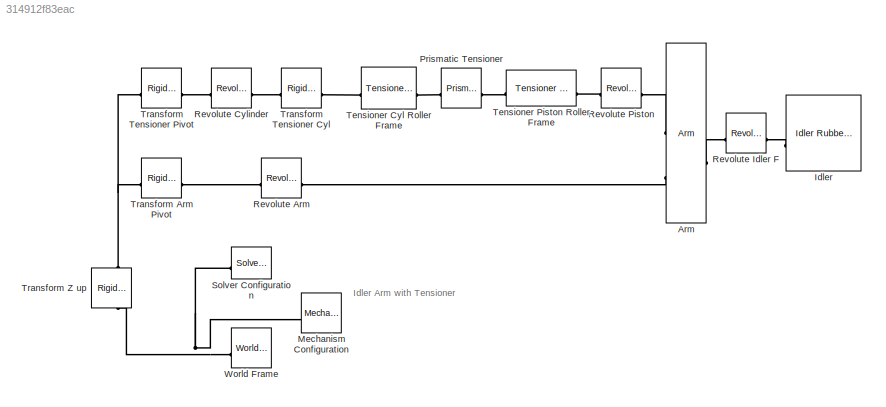
MODEL slx_314912f83eac
KIND model
CONFIG AbsTol = 1e-3
CONFIG EnableMultiTasking = on
CONFIG SolverName = VariableStepAuto
BLOCK [Reference] Arm  REF=sm_trackV_lib_belt_underc_elem/Arm
  SourceBlock = sm_trackV_lib_belt_underc_elem/Arm
  SourceType = Idler Arm, Tracked Vehicle
BLOCK [Reference] Idler  REF=sm_trackV_lib_belt_underc_elem/Idler
Rubber Track
Planar
  SourceBlock = sm_trackV_lib_belt_underc_elem/Idler\nRubber Track\nPlanar
  SourceType = Idler, Belt Track, Planar Contact
BLOCK [Reference] Mechanism Configuration  REF=sm_lib/Utilities/Mechanism
Configuration
  SourceBlock = sm_lib/Utilities/Mechanism\nConfiguration
  SourceType = Mechanism\nConfiguration
BLOCK [Reference] Prismatic Tensioner  REF=sm_lib/Joints/Prismatic
Joint
  SourceBlock = sm_lib/Joints/Prismatic\nJoint
  SourceType = Prismatic\nJoint
BLOCK [Reference] Revolute Arm  REF=sm_lib/Joints/Revolute Joint
  SourceBlock = sm_lib/Joints/Revolute Joint
  SourceType = Revolute Joint
BLOCK [Reference] Revolute Cylinder  REF=sm_lib/Joints/Revolute Joint
  SourceBlock = sm_lib/Joints/Revolute Joint
  SourceType = Revolute Joint
BLOCK [Reference] Revolute Idler F  REF=sm_lib/Joints/Revolute Joint
  SourceBlock = sm_lib/Joints/Revolute Joint
  SourceType = Revolute Joint
BLOCK [Reference] Revolute Piston  REF=sm_lib/Joints/Revolute Joint
  SourceBlock = sm_lib/Joints/Revolute Joint
  SourceType = Revolute Joint
BLOCK [Reference] Solver Configuration  REF=nesl_utility/Solver
Configuration
  SourceBlock = nesl_utility/Solver\nConfiguration
  SourceType = Solver\nConfiguration
BLOCK [Reference] Tensioner Cyl Roller Frame  REF=sm_trackV_lib_belt_underc_elem/Tensioner Cyl
Roller Frame
  SourceBlock = sm_trackV_lib_belt_underc_elem/Tensioner Cyl\nRoller Frame
  SourceType = Tensioner Cylinder
BLOCK [Reference] Tensioner Piston Roller Frame  REF=sm_trackV_lib_belt_underc_elem/Tensioner Piston
Roller Frame
  SourceBlock = sm_trackV_lib_belt_underc_elem/Tensioner Piston\nRoller Frame
  SourceType = Tensioner Piston and Bracket
BLOCK [Reference] Transform Arm Pivot  REF=sm_lib/Frames and
Transforms/Rigid
Transform
  SourceBlock = sm_lib/Frames and\nTransforms/Rigid\nTransform
  SourceType = Rigid\nTransform
BLOCK [Reference] Transform Tensioner Cyl  REF=sm_lib/Frames and
Transforms/Rigid
Transform
  SourceBlock = sm_lib/Frames and\nTransforms/Rigid\nTransform
  SourceType = Rigid\nTransform
BLOCK [Reference] Transform Tensioner Pivot  REF=sm_lib/Frames and
Transforms/Rigid
Transform
  SourceBlock = sm_lib/Frames and\nTransforms/Rigid\nTransform
  SourceType = Rigid\nTransform
BLOCK [Reference] Transform Z up  REF=sm_lib/Frames and
Transforms/Rigid
Transform
  NameLocation = right
  SourceBlock = sm_lib/Frames and\nTransforms/Rigid\nTransform
  SourceType = Rigid\nTransform
BLOCK [Reference] World Frame  REF=sm_lib/Frames and
Transforms/World Frame
  SourceBlock = sm_lib/Frames and\nTransforms/World Frame
  SourceType = World Frame
ANNOTATION (root): Idler Arm with Tensioner
PLINE Arm:LConn1 -- Revolute Piston:RConn1
PLINE Arm:LConn2 -- Revolute Arm:RConn1
PLINE Arm:RConn1 -- Revolute Idler F:LConn1
PLINE Idler:LConn1 -- Revolute Idler F:RConn1
PNET net1: Mechanism Configuration:RConn1 -- Solver Configuration:RConn1 -- Transform Z up:LConn1 -- World Frame:RConn1
PLINE Prismatic Tensioner:LConn1 -- Tensioner Cyl Roller Frame:RConn1
PLINE Prismatic Tensioner:RConn1 -- Tensioner Piston Roller Frame:LConn1
PLINE Revolute Arm:LConn1 -- Transform Arm Pivot:RConn1
PLINE Revolute Cylinder:LConn1 -- Transform Tensioner Pivot:RConn1
PLINE Revolute Cylinder:RConn1 -- Transform Tensioner Cyl:LConn1
PLINE Revolute Piston:LConn1 -- Tensioner Piston Roller Frame:RConn1
PLINE Tensioner Cyl Roller Frame:LConn1 -- Transform Tensioner Cyl:RConn1
PNET net2: Transform Arm Pivot:LConn1 -- Transform Tensioner Pivot:LConn1 -- Transform Z up:RConn1
note: PNET lines group multi-terminal physical nets as a canonical sorted terminal list (undirected conserving connections); 2-terminal nets keep the pairwise PLINE form
